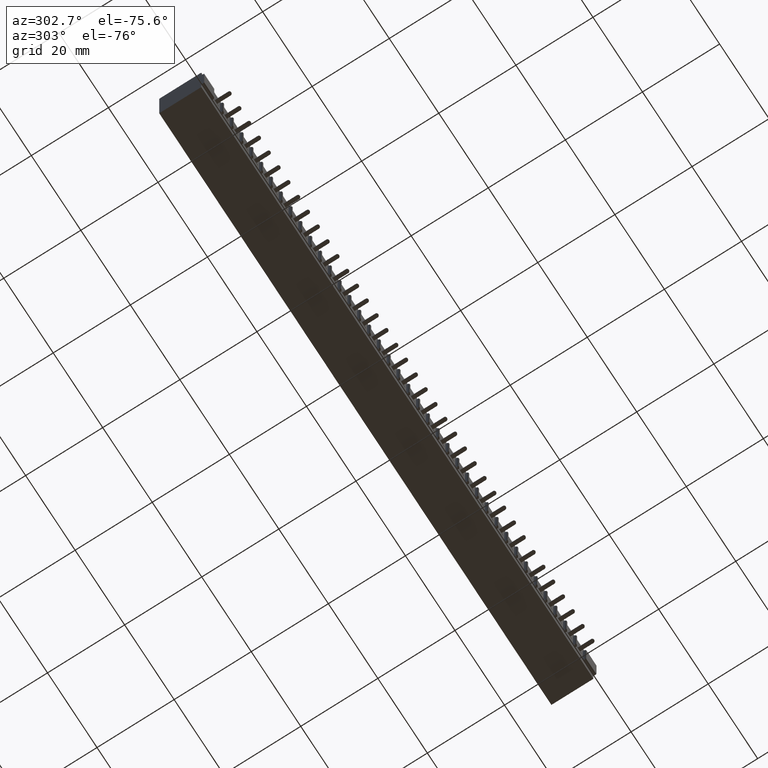
[diagram: clean part render]
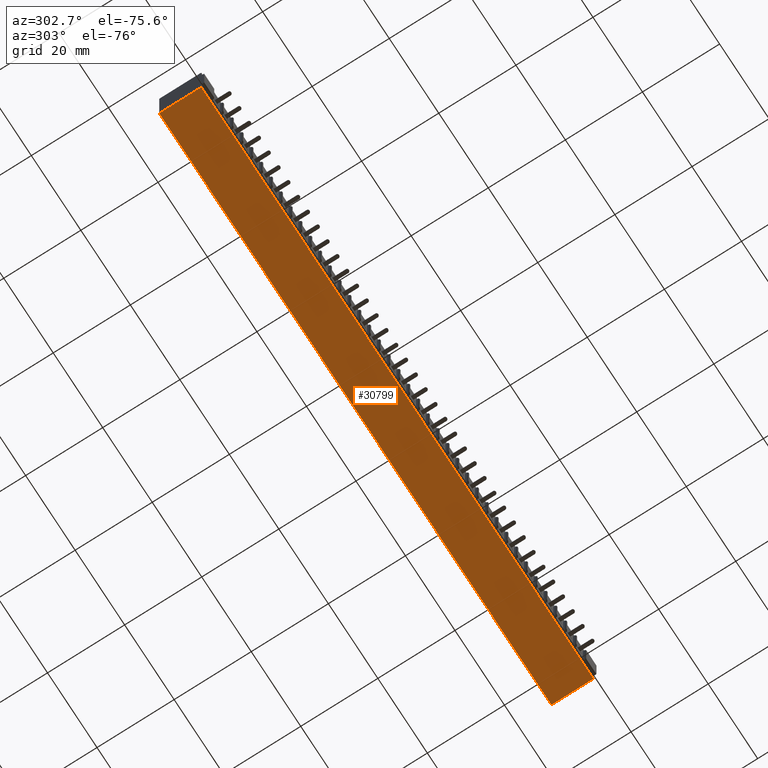
[diagram: same view with one face highlighted and labeled with its STEP entity id]
A machine part, auxiliary view. The second image highlights one B-rep face of the part: STEP entity #30799.
In plain terms, the highlighted planar face has unit normal (0, 0, 1).
Its self-contained STEP definition (entity closure, byte-faithful):
#463 = ORIENTED_EDGE ( 'NONE', *, *, #10007, .F. ) ;
#1593 = CARTESIAN_POINT ( 'NONE',  ( 0.0000000000000000000, 0.4600000000000000200, -0.5000000000000000000 ) ) ;
#2203 = PLANE ( 'NONE',  #33543 ) ;
#2425 = EDGE_LOOP ( 'NONE', ( #463, #29223, #25693, #15177 ) ) ;
#3452 = VECTOR ( 'NONE', #15749, 39.37007874015748100 ) ;
#5218 = VERTEX_POINT ( 'NONE', #31919 ) ;
#5618 = EDGE_CURVE ( 'NONE', #26488, #19313, #23492, .T. ) ;
#6041 = FACE_OUTER_BOUND ( 'NONE', #2425, .T. ) ;
#7842 = DIRECTION ( 'NONE',  ( 1.000000000000000000, 0.0000000000000000000, -0.0000000000000000000 ) ) ;
#8036 = VECTOR ( 'NONE', #10639, 39.37007874015748100 ) ;
#10007 = EDGE_CURVE ( 'NONE', #19313, #20108, #10892, .T. ) ;
#10639 = DIRECTION ( 'NONE',  ( -0.0000000000000000000, 1.000000000000000000, -0.0000000000000000000 ) ) ;
#10892 = LINE ( 'NONE', #1593, #3452 ) ;
#11689 = CARTESIAN_POINT ( 'NONE',  ( 6.535999999999999600, 0.03100000000000000000, -0.4999999999999987800 ) ) ;
#12042 = DIRECTION ( 'NONE',  ( -0.0000000000000000000, 1.000000000000000000, -0.0000000000000000000 ) ) ;
#15177 = ORIENTED_EDGE ( 'NONE', *, *, #23053, .T. ) ;
#15310 = VECTOR ( 'NONE', #12042, 39.37007874015748100 ) ;
#15749 = DIRECTION ( 'NONE',  ( -1.000000000000000000, -0.0000000000000000000, -0.0000000000000000000 ) ) ;
#16310 = LINE ( 'NONE', #24401, #8036 ) ;
#16325 = CARTESIAN_POINT ( 'NONE',  ( 6.535999999999999600, 0.0000000000000000000, -0.4999999999999987800 ) ) ;
#18622 = VECTOR ( 'NONE', #28706, 39.37007874015748100 ) ;
#19313 = VERTEX_POINT ( 'NONE', #20924 ) ;
#20108 = VERTEX_POINT ( 'NONE', #27052 ) ;
#20924 = CARTESIAN_POINT ( 'NONE',  ( 6.535999999999999600, 0.4600000000000000200, -0.4999999999999987800 ) ) ;
#21686 = CARTESIAN_POINT ( 'NONE',  ( 0.0000000000000000000, 0.4600000000000000200, -0.5000000000000000000 ) ) ;
#23053 = EDGE_CURVE ( 'NONE', #5218, #20108, #16310, .T. ) ;
#23492 = LINE ( 'NONE', #16325, #15310 ) ;
#24401 = CARTESIAN_POINT ( 'NONE',  ( 0.2979999999999998800, 0.0000000000000000000, -0.5000000000000001100 ) ) ;
#24406 = DIRECTION ( 'NONE',  ( 0.0000000000000000000, 0.0000000000000000000, 1.000000000000000000 ) ) ;
#25693 = ORIENTED_EDGE ( 'NONE', *, *, #33897, .T. ) ;
#25966 = CARTESIAN_POINT ( 'NONE',  ( 6.833999999999999600, 0.03100000000000000000, -0.5000000000000000000 ) ) ;
#26488 = VERTEX_POINT ( 'NONE', #11689 ) ;
#27052 = CARTESIAN_POINT ( 'NONE',  ( 0.2979999999999998800, 0.4600000000000000200, -0.5000000000000001100 ) ) ;
#28706 = DIRECTION ( 'NONE',  ( -1.000000000000000000, -0.0000000000000000000, -0.0000000000000000000 ) ) ;
#29223 = ORIENTED_EDGE ( 'NONE', *, *, #5618, .F. ) ;
#30799 = ADVANCED_FACE ( 'NONE', ( #6041 ), #2203, .F. ) ;
#31919 = CARTESIAN_POINT ( 'NONE',  ( 0.2979999999999999300, 0.03100000000000000000, -0.5000000000000000000 ) ) ;
#32240 = LINE ( 'NONE', #25966, #18622 ) ;
#33543 = AXIS2_PLACEMENT_3D ( 'NONE', #21686, #24406, #7842 ) ;
#33897 = EDGE_CURVE ( 'NONE', #26488, #5218, #32240, .T. ) ;